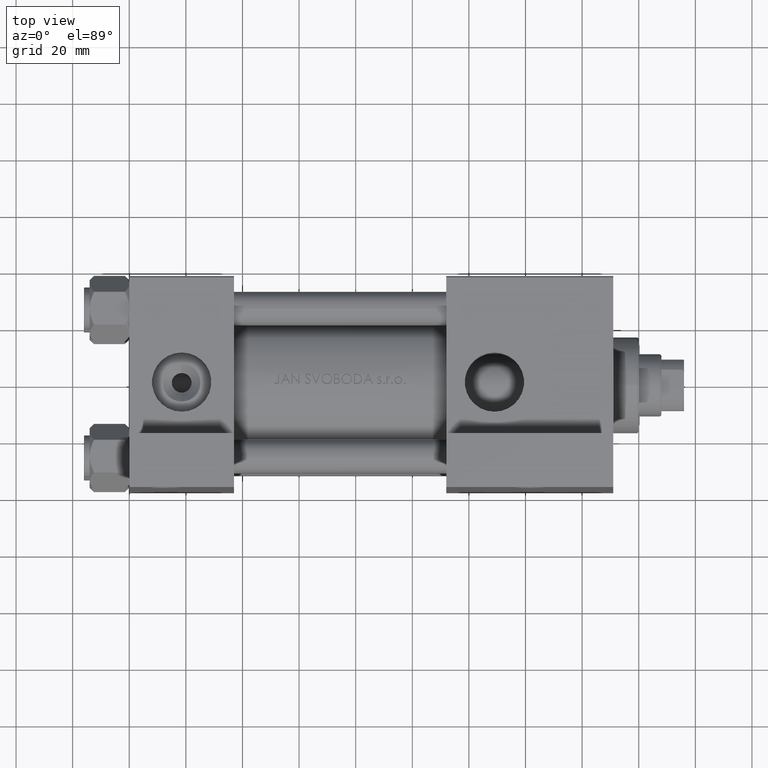
[diagram: clean part render]
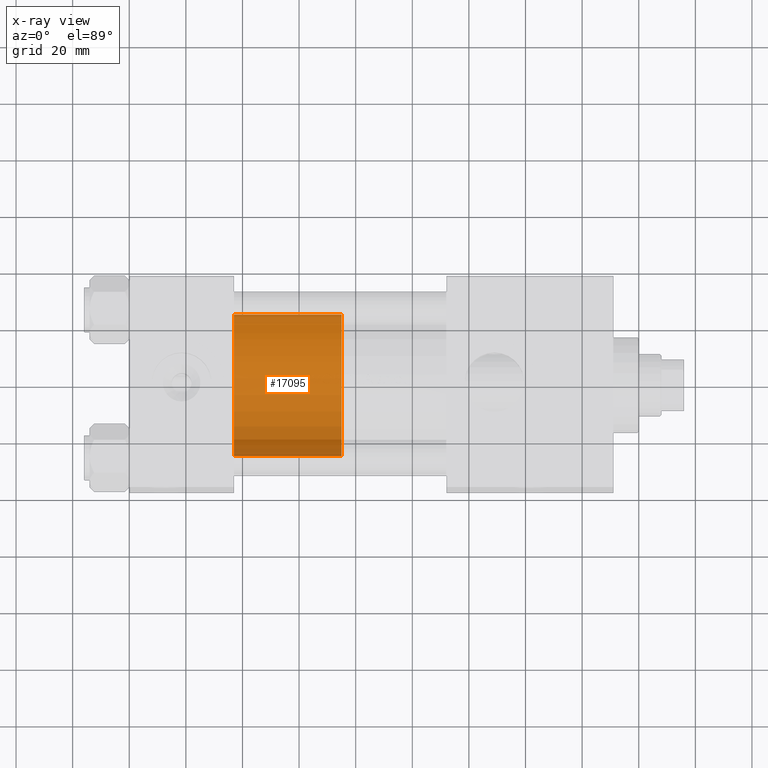
[diagram: x-ray — body ghosted, one internal face saturated and labeled with its STEP entity id]
A machine part, top view, then the same camera in x-ray: the body is ghosted and one INTERNAL B-rep face — a face not visible from any outside direction — is saturated and labeled: STEP entity #17095.
In plain terms, the highlighted cylindrical surface (partial cylindrical patch) has radius 25 mm, axis along (-1, 0, 0).
Its self-contained STEP definition (entity closure, byte-faithful):
#836 = VERTEX_POINT ( 'NONE', #962 ) ;
#962 = CARTESIAN_POINT ( 'NONE',  ( 25.00000000000000000, 3.061616997868383043E-15, 38.00000000000000000 ) ) ;
#2172 = CARTESIAN_POINT ( 'NONE',  ( 25.00000000000000000, 3.061616997868383043E-15, 38.00000000000000000 ) ) ;
#2784 = CIRCLE ( 'NONE', #36980, 25.00000000000000000 ) ;
#3337 = EDGE_CURVE ( 'NONE', #836, #44460, #48462, .T. ) ;
#5662 = EDGE_CURVE ( 'NONE', #836, #24578, #2784, .T. ) ;
#7429 = VERTEX_POINT ( 'NONE', #19560 ) ;
#8849 = DIRECTION ( 'NONE',  ( -0.000000000000000000, -0.000000000000000000, -1.000000000000000000 ) ) ;
#14371 = DIRECTION ( 'NONE',  ( -0.000000000000000000, -0.000000000000000000, -1.000000000000000000 ) ) ;
#15485 = ORIENTED_EDGE ( 'NONE', *, *, #3337, .T. ) ;
#16255 = VECTOR ( 'NONE', #14371, 1000.000000000000000 ) ;
#17073 = CARTESIAN_POINT ( 'NONE',  ( -25.00000000000000000, 0.000000000000000000, 38.00000000000000000 ) ) ;
#17095 = ADVANCED_FACE ( 'NONE', ( #23598 ), #19867, .T. ) ;
#18512 = CARTESIAN_POINT ( 'NONE',  ( -25.00000000000000000, 0.000000000000000000, 38.00000000000000000 ) ) ;
#19560 = CARTESIAN_POINT ( 'NONE',  ( -25.00000000000000000, 0.000000000000000000, 0.000000000000000000 ) ) ;
#19867 = CYLINDRICAL_SURFACE ( 'NONE', #43606, 25.00000000000000000 ) ;
#20296 = LINE ( 'NONE', #17073, #38936 ) ;
#20381 = EDGE_CURVE ( 'NONE', #24578, #7429, #20296, .T. ) ;
#22268 = DIRECTION ( 'NONE',  ( 0.000000000000000000, 0.000000000000000000, 1.000000000000000000 ) ) ;
#22366 = AXIS2_PLACEMENT_3D ( 'NONE', #24770, #43697, #35717 ) ;
#22506 = CARTESIAN_POINT ( 'NONE',  ( 0.000000000000000000, 0.000000000000000000, 38.00000000000000000 ) ) ;
#23349 = DIRECTION ( 'NONE',  ( -0.000000000000000000, -0.000000000000000000, -1.000000000000000000 ) ) ;
#23598 = FACE_OUTER_BOUND ( 'NONE', #28112, .T. ) ;
#24356 = EDGE_CURVE ( 'NONE', #44460, #7429, #29508, .T. ) ;
#24578 = VERTEX_POINT ( 'NONE', #18512 ) ;
#24770 = CARTESIAN_POINT ( 'NONE',  ( 0.000000000000000000, 0.000000000000000000, 0.000000000000000000 ) ) ;
#24903 = ORIENTED_EDGE ( 'NONE', *, *, #20381, .F. ) ;
#28112 = EDGE_LOOP ( 'NONE', ( #43616, #15485, #44383, #24903 ) ) ;
#29508 = CIRCLE ( 'NONE', #22366, 25.00000000000000000 ) ;
#30082 = DIRECTION ( 'NONE',  ( -1.000000000000000000, 0.000000000000000000, 0.000000000000000000 ) ) ;
#35717 = DIRECTION ( 'NONE',  ( 1.000000000000000000, 0.000000000000000000, 0.000000000000000000 ) ) ;
#36980 = AXIS2_PLACEMENT_3D ( 'NONE', #22506, #22268, #49136 ) ;
#38936 = VECTOR ( 'NONE', #8849, 1000.000000000000000 ) ;
#43606 = AXIS2_PLACEMENT_3D ( 'NONE', #46002, #23349, #30082 ) ;
#43616 = ORIENTED_EDGE ( 'NONE', *, *, #5662, .F. ) ;
#43697 = DIRECTION ( 'NONE',  ( 0.000000000000000000, 0.000000000000000000, 1.000000000000000000 ) ) ;
#44383 = ORIENTED_EDGE ( 'NONE', *, *, #24356, .T. ) ;
#44460 = VERTEX_POINT ( 'NONE', #45438 ) ;
#45438 = CARTESIAN_POINT ( 'NONE',  ( 25.00000000000000000, 3.061616997868383043E-15, 0.000000000000000000 ) ) ;
#46002 = CARTESIAN_POINT ( 'NONE',  ( 0.000000000000000000, 0.000000000000000000, 38.00000000000000000 ) ) ;
#48462 = LINE ( 'NONE', #2172, #16255 ) ;
#49136 = DIRECTION ( 'NONE',  ( 1.000000000000000000, 0.000000000000000000, 0.000000000000000000 ) ) ;